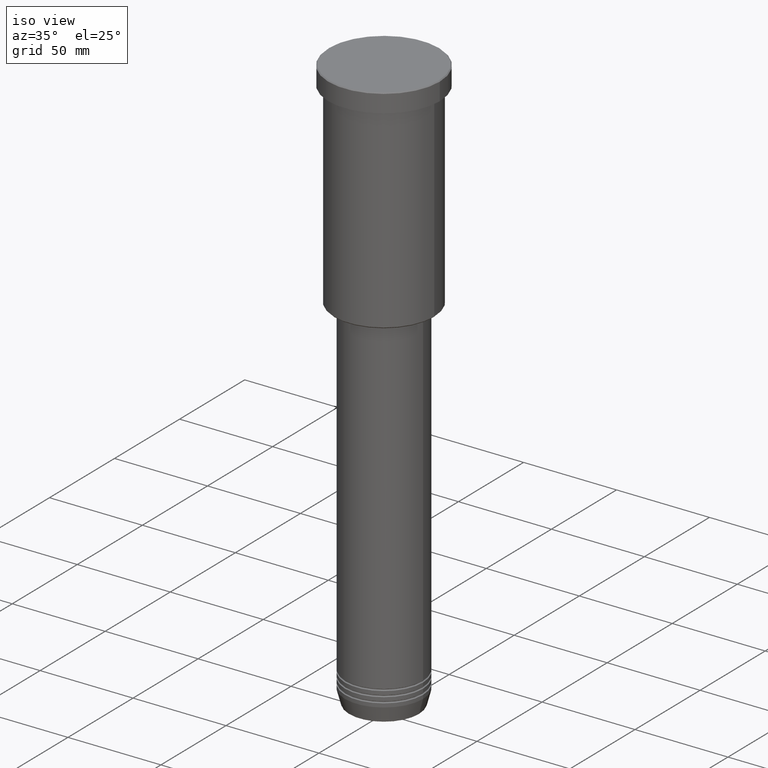
[diagram: clean part render]
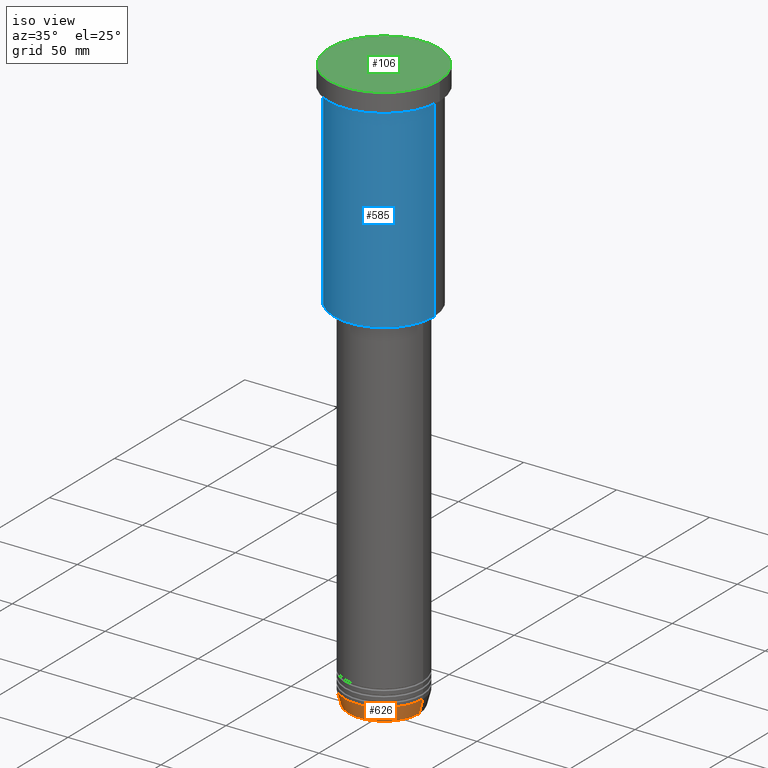
[diagram: same view with three faces highlighted in distinct colors, each labeled with its STEP entity id]
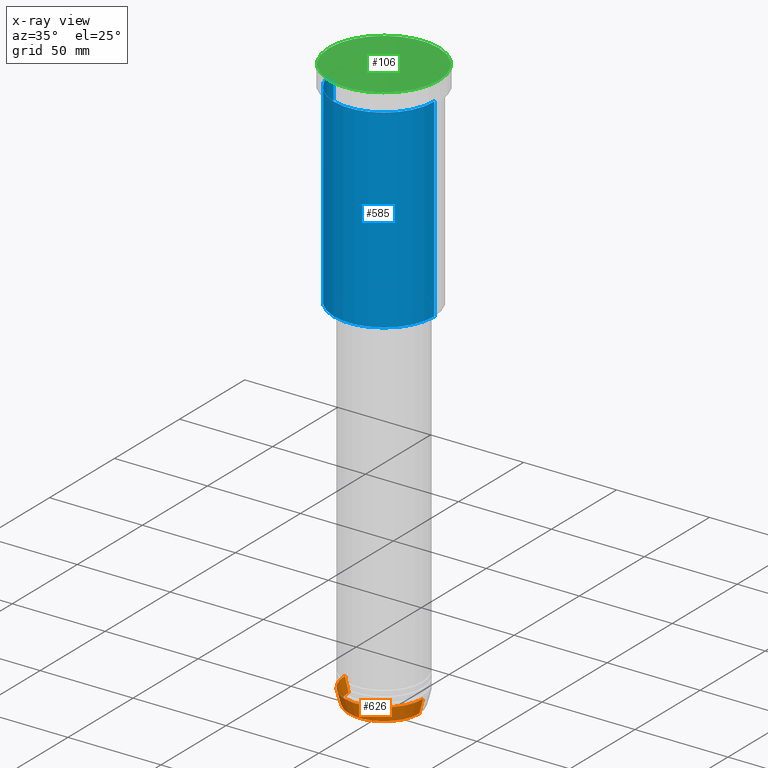
[diagram: x-ray of the same camera — body ghosted, the three highlighted faces saturated]
A machine part, iso view with three faces highlighted in distinct colors.
The next image is the same camera in x-ray (body ghosted, the three faces saturated) — at least one of them is partly hidden behind the body in this view.
Their STEP definitions:

[orange] entity #626 — the highlighted conical surface has half-angle 15 deg.
#13 = CARTESIAN_POINT ( 'NONE',  ( 18.95570587970606624, 0.000000000000000000, -310.6294095225512706 ) ) ;
#65 = ORIENTED_EDGE ( 'NONE', *, *, #905, .F. ) ;
#74 = VERTEX_POINT ( 'NONE', #641 ) ;
#156 = CARTESIAN_POINT ( 'NONE',  ( 0.000000000000000000, 0.000000000000000000, -310.6294095225512706 ) ) ;
#158 = CARTESIAN_POINT ( 'NONE',  ( 0.000000000000000000, 0.000000000000000000, -303.0000000000000000 ) ) ;
#191 = AXIS2_PLACEMENT_3D ( 'NONE', #197, #1035, #761 ) ;
#197 = CARTESIAN_POINT ( 'NONE',  ( 0.000000000000000000, 0.000000000000000000, -303.0000000000000000 ) ) ;
#416 = EDGE_LOOP ( 'NONE', ( #675, #980, #579, #65 ) ) ;
#422 = FACE_OUTER_BOUND ( 'NONE', #416, .T. ) ;
#431 = DIRECTION ( 'NONE',  ( 1.000000000000000000, 0.000000000000000000, 0.000000000000000000 ) ) ;
#480 = VERTEX_POINT ( 'NONE', #13 ) ;
#516 = VECTOR ( 'NONE', #1073, 1000.000000000000114 ) ;
#550 = VERTEX_POINT ( 'NONE', #588 ) ;
#579 = ORIENTED_EDGE ( 'NONE', *, *, #1080, .T. ) ;
#588 = CARTESIAN_POINT ( 'NONE',  ( 21.00000000000000000, 0.000000000000000000, -303.0000000000000000 ) ) ;
#626 = ADVANCED_FACE ( 'NONE', ( #422 ), #696, .T. ) ;
#641 = CARTESIAN_POINT ( 'NONE',  ( -18.95570587970606624, 2.446581365662755730E-15, -310.6294095225512706 ) ) ;
#675 = ORIENTED_EDGE ( 'NONE', *, *, #836, .F. ) ;
#696 = CONICAL_SURFACE ( 'NONE', #969, 21.00000000000000000, 0.2617993877991499629 ) ;
#726 = LINE ( 'NONE', #897, #1183 ) ;
#731 = CARTESIAN_POINT ( 'NONE',  ( 21.00000000000000000, 0.000000000000000000, -303.0000000000000000 ) ) ;
#761 = DIRECTION ( 'NONE',  ( 1.000000000000000000, 0.000000000000000000, 0.000000000000000000 ) ) ;
#782 = LINE ( 'NONE', #731, #516 ) ;
#836 = EDGE_CURVE ( 'NONE', #74, #1046, #726, .T. ) ;
#882 = DIRECTION ( 'NONE',  ( -0.000000000000000000, -0.000000000000000000, 1.000000000000000000 ) ) ;
#894 = DIRECTION ( 'NONE',  ( 1.000000000000000000, 0.000000000000000000, 0.000000000000000000 ) ) ;
#897 = CARTESIAN_POINT ( 'NONE',  ( -21.00000000000000000, 2.571758278209441661E-15, -303.0000000000000000 ) ) ;
#905 = EDGE_CURVE ( 'NONE', #1046, #550, #1162, .T. ) ;
#969 = AXIS2_PLACEMENT_3D ( 'NONE', #158, #882, #431 ) ;
#980 = ORIENTED_EDGE ( 'NONE', *, *, #1141, .T. ) ;
#1035 = DIRECTION ( 'NONE',  ( -0.000000000000000000, -0.000000000000000000, 1.000000000000000000 ) ) ;
#1040 = DIRECTION ( 'NONE',  ( -0.000000000000000000, -0.000000000000000000, 1.000000000000000000 ) ) ;
#1046 = VERTEX_POINT ( 'NONE', #1083 ) ;
#1073 = DIRECTION ( 'NONE',  ( 0.2588190451025212391, 0.000000000000000000, 0.9659258262890680902 ) ) ;
#1080 = EDGE_CURVE ( 'NONE', #480, #550, #782, .T. ) ;
#1081 = DIRECTION ( 'NONE',  ( -0.2588190451025212391, 3.169619151431771721E-17, 0.9659258262890680902 ) ) ;
#1083 = CARTESIAN_POINT ( 'NONE',  ( -21.00000000000000000, 2.571758278209441661E-15, -303.0000000000000000 ) ) ;
#1106 = CIRCLE ( 'NONE', #1143, 18.95570587970606624 ) ;
#1141 = EDGE_CURVE ( 'NONE', #74, #480, #1106, .T. ) ;
#1143 = AXIS2_PLACEMENT_3D ( 'NONE', #156, #1040, #894 ) ;
#1162 = CIRCLE ( 'NONE', #191, 21.00000000000000000 ) ;
#1183 = VECTOR ( 'NONE', #1081, 1000.000000000000114 ) ;

[blue] entity #585 — the highlighted cylindrical surface (partial cylindrical patch) has radius 27 mm, axis along (-0, -0, 1).
#23 = CYLINDRICAL_SURFACE ( 'NONE', #671, 27.00000000000000355 ) ;
#70 = VERTEX_POINT ( 'NONE', #918 ) ;
#86 = DIRECTION ( 'NONE',  ( -1.000000000000000000, 0.000000000000000000, 0.000000000000000000 ) ) ;
#119 = DIRECTION ( 'NONE',  ( -0.000000000000000000, -0.000000000000000000, 1.000000000000000000 ) ) ;
#123 = EDGE_CURVE ( 'NONE', #70, #1177, #512, .T. ) ;
#165 = DIRECTION ( 'NONE',  ( -0.000000000000000000, -0.000000000000000000, 1.000000000000000000 ) ) ;
#225 = AXIS2_PLACEMENT_3D ( 'NONE', #865, #695, #86 ) ;
#239 = CARTESIAN_POINT ( 'NONE',  ( -27.00000000000000355, 3.306546357697854128E-15, 0.000000000000000000 ) ) ;
#340 = VERTEX_POINT ( 'NONE', #591 ) ;
#341 = CARTESIAN_POINT ( 'NONE',  ( 27.00000000000000355, 0.000000000000000000, -115.4999999999999716 ) ) ;
#412 = VERTEX_POINT ( 'NONE', #341 ) ;
#475 = FACE_OUTER_BOUND ( 'NONE', #1096, .T. ) ;
#509 = ORIENTED_EDGE ( 'NONE', *, *, #732, .F. ) ;
#512 = CIRCLE ( 'NONE', #734, 27.00000000000000355 ) ;
#534 = CARTESIAN_POINT ( 'NONE',  ( 27.00000000000000355, 0.000000000000000000, -10.99999999999999289 ) ) ;
#585 = ADVANCED_FACE ( 'NONE', ( #475 ), #23, .T. ) ;
#591 = CARTESIAN_POINT ( 'NONE',  ( -27.00000000000000355, 3.306546357697854128E-15, -115.4999999999999716 ) ) ;
#624 = ORIENTED_EDGE ( 'NONE', *, *, #123, .F. ) ;
#669 = CARTESIAN_POINT ( 'NONE',  ( 0.000000000000000000, 0.000000000000000000, 0.000000000000000000 ) ) ;
#671 = AXIS2_PLACEMENT_3D ( 'NONE', #669, #119, #796 ) ;
#695 = DIRECTION ( 'NONE',  ( -0.000000000000000000, -0.000000000000000000, 1.000000000000000000 ) ) ;
#732 = EDGE_CURVE ( 'NONE', #340, #70, #1060, .T. ) ;
#734 = AXIS2_PLACEMENT_3D ( 'NONE', #827, #1180, #744 ) ;
#737 = VECTOR ( 'NONE', #165, 1000.000000000000000 ) ;
#744 = DIRECTION ( 'NONE',  ( 1.000000000000000000, 0.000000000000000000, 0.000000000000000000 ) ) ;
#796 = DIRECTION ( 'NONE',  ( 1.000000000000000000, 0.000000000000000000, 0.000000000000000000 ) ) ;
#827 = CARTESIAN_POINT ( 'NONE',  ( 0.000000000000000000, 0.000000000000000000, -10.99999999999999289 ) ) ;
#851 = EDGE_CURVE ( 'NONE', #412, #1177, #992, .T. ) ;
#865 = CARTESIAN_POINT ( 'NONE',  ( 0.000000000000000000, 0.000000000000000000, -115.4999999999999716 ) ) ;
#877 = ORIENTED_EDGE ( 'NONE', *, *, #851, .T. ) ;
#904 = CARTESIAN_POINT ( 'NONE',  ( 27.00000000000000355, 0.000000000000000000, 0.000000000000000000 ) ) ;
#907 = ORIENTED_EDGE ( 'NONE', *, *, #1133, .T. ) ;
#915 = CIRCLE ( 'NONE', #225, 27.00000000000000355 ) ;
#918 = CARTESIAN_POINT ( 'NONE',  ( -27.00000000000000355, 3.306546357697854128E-15, -10.99999999999999289 ) ) ;
#992 = LINE ( 'NONE', #904, #1142 ) ;
#1060 = LINE ( 'NONE', #239, #737 ) ;
#1094 = DIRECTION ( 'NONE',  ( -0.000000000000000000, -0.000000000000000000, 1.000000000000000000 ) ) ;
#1096 = EDGE_LOOP ( 'NONE', ( #509, #907, #877, #624 ) ) ;
#1133 = EDGE_CURVE ( 'NONE', #340, #412, #915, .T. ) ;
#1142 = VECTOR ( 'NONE', #1094, 1000.000000000000000 ) ;
#1177 = VERTEX_POINT ( 'NONE', #534 ) ;
#1180 = DIRECTION ( 'NONE',  ( -0.000000000000000000, -0.000000000000000000, 1.000000000000000000 ) ) ;

[green] entity #106 — the highlighted planar face has unit normal (0, -0, 1).
#25 = CARTESIAN_POINT ( 'NONE',  ( -29.50000000000000000, 0.000000000000000000, 0.000000000000000000 ) ) ;
#83 = CIRCLE ( 'NONE', #536, 29.50000000000000000 ) ;
#85 = DIRECTION ( 'NONE',  ( 1.000000000000000000, 0.000000000000000000, 0.000000000000000000 ) ) ;
#106 = ADVANCED_FACE ( 'NONE', ( #748 ), #634, .T. ) ;
#161 = EDGE_LOOP ( 'NONE', ( #740, #941 ) ) ;
#164 = EDGE_CURVE ( 'NONE', #223, #1042, #771, .T. ) ;
#223 = VERTEX_POINT ( 'NONE', #25 ) ;
#246 = DIRECTION ( 'NONE',  ( 1.000000000000000000, 0.000000000000000000, 0.000000000000000000 ) ) ;
#267 = DIRECTION ( 'NONE',  ( 0.000000000000000000, -0.000000000000000000, 1.000000000000000000 ) ) ;
#284 = DIRECTION ( 'NONE',  ( 1.000000000000000000, 0.000000000000000000, 0.000000000000000000 ) ) ;
#458 = CARTESIAN_POINT ( 'NONE',  ( 0.000000000000000000, 0.000000000000000000, 0.000000000000000000 ) ) ;
#526 = DIRECTION ( 'NONE',  ( -0.000000000000000000, -0.000000000000000000, 1.000000000000000000 ) ) ;
#536 = AXIS2_PLACEMENT_3D ( 'NONE', #1064, #1135, #246 ) ;
#573 = AXIS2_PLACEMENT_3D ( 'NONE', #458, #267, #284 ) ;
#634 = PLANE ( 'NONE',  #573 ) ;
#740 = ORIENTED_EDGE ( 'NONE', *, *, #164, .T. ) ;
#748 = FACE_OUTER_BOUND ( 'NONE', #161, .T. ) ;
#771 = CIRCLE ( 'NONE', #944, 29.50000000000000000 ) ;
#857 = CARTESIAN_POINT ( 'NONE',  ( 29.50000000000000000, 3.643324227463375391E-15, 0.000000000000000000 ) ) ;
#941 = ORIENTED_EDGE ( 'NONE', *, *, #1137, .T. ) ;
#944 = AXIS2_PLACEMENT_3D ( 'NONE', #1058, #526, #85 ) ;
#1042 = VERTEX_POINT ( 'NONE', #857 ) ;
#1058 = CARTESIAN_POINT ( 'NONE',  ( 0.000000000000000000, 0.000000000000000000, 0.000000000000000000 ) ) ;
#1064 = CARTESIAN_POINT ( 'NONE',  ( 0.000000000000000000, 0.000000000000000000, 0.000000000000000000 ) ) ;
#1135 = DIRECTION ( 'NONE',  ( -0.000000000000000000, -0.000000000000000000, 1.000000000000000000 ) ) ;
#1137 = EDGE_CURVE ( 'NONE', #1042, #223, #83, .T. ) ;